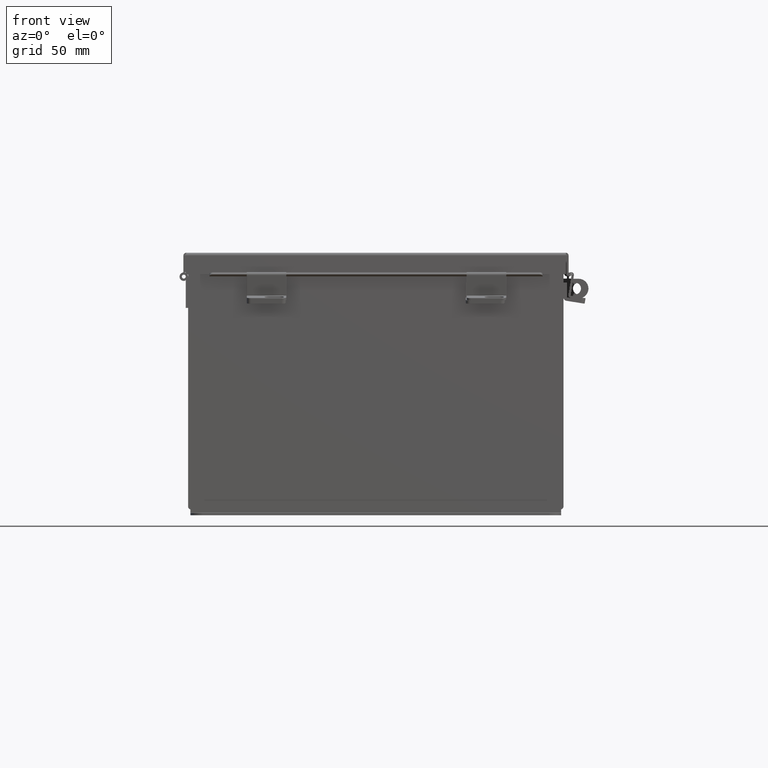
[diagram: clean part render]
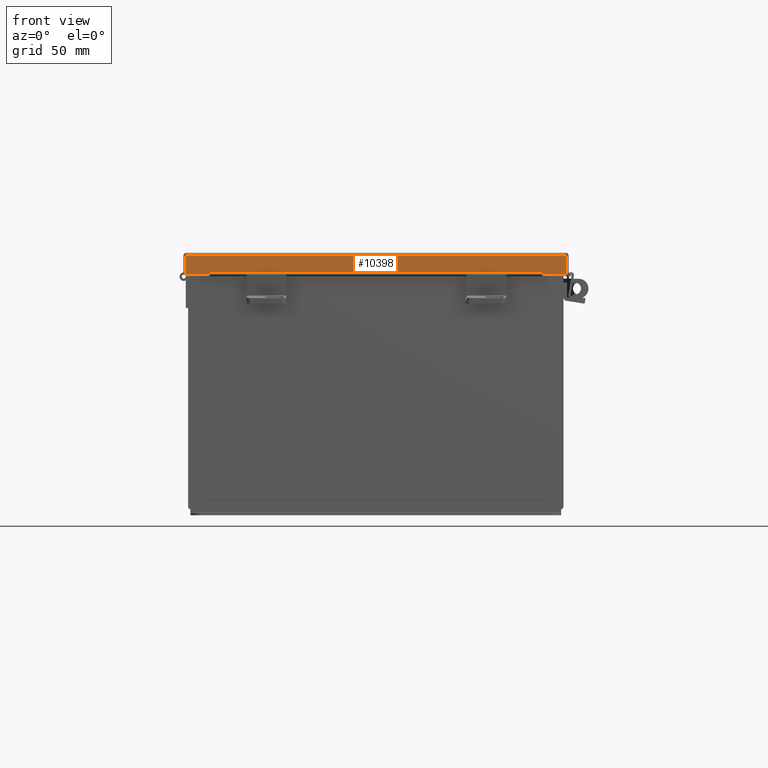
[diagram: same view with one face highlighted and labeled with its STEP entity id]
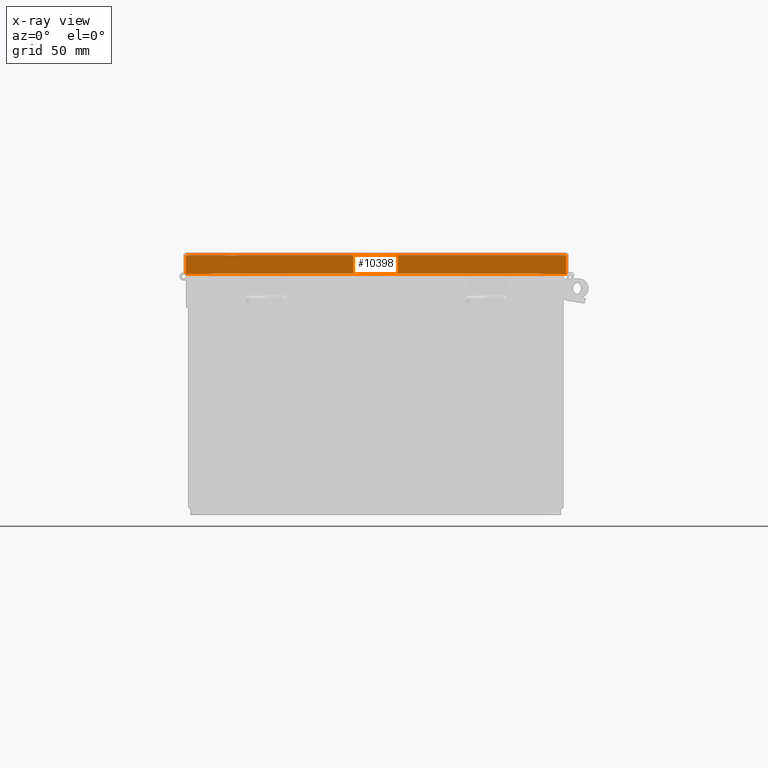
[diagram: x-ray of the same camera — body ghosted, the highlighted face saturated]
A machine part, front view. The second image highlights one B-rep face of the part: STEP entity #10398.
The next image is the same camera in x-ray: the body ghosted, the highlighted face saturated — about 0% of this face is hidden behind the body in this view.
In plain terms, the highlighted planar face has unit normal (0, 1, -0).
Its self-contained STEP definition (entity closure, byte-faithful):
#1458 = VECTOR ( 'NONE', #13759, 39.37007874015748100 ) ;
#1841 = AXIS2_PLACEMENT_3D ( 'NONE', #6951, #8509, #19443 ) ;
#1858 = CARTESIAN_POINT ( 'NONE',  ( -5.324478932188132100, -8.156250000000001800, 0.5967115427318793200 ) ) ;
#2674 = VERTEX_POINT ( 'NONE', #5388 ) ;
#2715 = ORIENTED_EDGE ( 'NONE', *, *, #3205, .F. ) ;
#2766 = ORIENTED_EDGE ( 'NONE', *, *, #11138, .F. ) ;
#2868 = DIRECTION ( 'NONE',  ( -1.000000000000000000, -2.980119896754336400E-033, 5.546899479520645900E-018 ) ) ;
#3205 = EDGE_CURVE ( 'NONE', #17601, #11369, #12376, .T. ) ;
#3629 = ORIENTED_EDGE ( 'NONE', *, *, #5014, .T. ) ;
#4115 = CARTESIAN_POINT ( 'NONE',  ( -6.156249999999998200, -8.156250000000000000, 0.01300000000000010700 ) ) ;
#5014 = EDGE_CURVE ( 'NONE', #17601, #2674, #8372, .T. ) ;
#5056 = DIRECTION ( 'NONE',  ( -1.000000000000000000, -2.980119896754336400E-033, 5.546899479520645900E-018 ) ) ;
#5237 = LINE ( 'NONE', #9011, #13535 ) ;
#5388 = CARTESIAN_POINT ( 'NONE',  ( -6.074478932188135600, -8.156250000000001800, 0.6122999999999994000 ) ) ;
#5599 = LINE ( 'NONE', #4115, #6093 ) ;
#6093 = VECTOR ( 'NONE', #18189, 39.37007874015748100 ) ;
#6332 = CARTESIAN_POINT ( 'NONE',  ( -5.324478932188133000, -8.156250000000003600, 0.6122999999999994000 ) ) ;
#6351 = CARTESIAN_POINT ( 'NONE',  ( 5.324478932188132100, -8.156250000000001800, 0.6122999999999994000 ) ) ;
#6617 = CARTESIAN_POINT ( 'NONE',  ( 4.268512490100411300E-018, -8.156250000000001800, 0.6122999999999994000 ) ) ;
#6951 = CARTESIAN_POINT ( 'NONE',  ( 0.0000000000000000000, -8.156250000000000000, -2.950395833157404200E-014 ) ) ;
#7230 = VERTEX_POINT ( 'NONE', #17961 ) ;
#7609 = EDGE_CURVE ( 'NONE', #16374, #2674, #9512, .T. ) ;
#7882 = VECTOR ( 'NONE', #5056, 39.37007874015748100 ) ;
#8232 = PLANE ( 'NONE',  #1841 ) ;
#8372 = LINE ( 'NONE', #6617, #7882 ) ;
#8509 = DIRECTION ( 'NONE',  ( 2.905052650632662100E-032, 1.000000000000000000, 3.569293475308526100E-015 ) ) ;
#9011 = CARTESIAN_POINT ( 'NONE',  ( 6.074478932188135600, -8.156250000000000000, -2.950395833157404200E-014 ) ) ;
#9224 = DIRECTION ( 'NONE',  ( -0.0000000000000000000, -3.569293475308526100E-015, 1.000000000000000000 ) ) ;
#9240 = LINE ( 'NONE', #19976, #17067 ) ;
#9512 = LINE ( 'NONE', #20134, #17794 ) ;
#9721 = LINE ( 'NONE', #19903, #1458 ) ;
#10006 = VECTOR ( 'NONE', #11006, 39.37007874015748100 ) ;
#10398 = ADVANCED_FACE ( 'NONE', ( #12674 ), #8232, .F. ) ;
#10630 = EDGE_CURVE ( 'NONE', #11169, #17205, #9240, .T. ) ;
#10760 = CARTESIAN_POINT ( 'NONE',  ( 6.074478932188137400, -8.156250000000001800, 0.6122999999999994000 ) ) ;
#10786 = ORIENTED_EDGE ( 'NONE', *, *, #7609, .F. ) ;
#11006 = DIRECTION ( 'NONE',  ( 0.0000000000000000000, -1.401985044024143500E-013, 1.000000000000000000 ) ) ;
#11138 = EDGE_CURVE ( 'NONE', #11369, #18574, #9721, .T. ) ;
#11169 = VERTEX_POINT ( 'NONE', #10760 ) ;
#11369 = VERTEX_POINT ( 'NONE', #1858 ) ;
#12376 = LINE ( 'NONE', #6332, #16055 ) ;
#12674 = FACE_OUTER_BOUND ( 'NONE', #18575, .T. ) ;
#13351 = EDGE_CURVE ( 'NONE', #7230, #11169, #5237, .T. ) ;
#13429 = CARTESIAN_POINT ( 'NONE',  ( 5.324478932188133000, -8.156250000000001800, 0.5967115427318793200 ) ) ;
#13535 = VECTOR ( 'NONE', #19931, 39.37007874015748100 ) ;
#13652 = LINE ( 'NONE', #18768, #10006 ) ;
#13759 = DIRECTION ( 'NONE',  ( 1.000000000000000000, 2.258600338820354400E-033, -0.0000000000000000000 ) ) ;
#13930 = ORIENTED_EDGE ( 'NONE', *, *, #19908, .F. ) ;
#16055 = VECTOR ( 'NONE', #17477, 39.37007874015748100 ) ;
#16374 = VERTEX_POINT ( 'NONE', #19918 ) ;
#17067 = VECTOR ( 'NONE', #2868, 39.37007874015748100 ) ;
#17205 = VERTEX_POINT ( 'NONE', #6351 ) ;
#17477 = DIRECTION ( 'NONE',  ( 7.009925220120870000E-014, 2.102977566036261100E-013, -1.000000000000000000 ) ) ;
#17598 = ORIENTED_EDGE ( 'NONE', *, *, #10630, .T. ) ;
#17601 = VERTEX_POINT ( 'NONE', #18790 ) ;
#17794 = VECTOR ( 'NONE', #9224, 39.37007874015748100 ) ;
#17961 = CARTESIAN_POINT ( 'NONE',  ( 6.074478932188137400, -8.156250000000000000, 0.01300000000000010700 ) ) ;
#18102 = ORIENTED_EDGE ( 'NONE', *, *, #20138, .F. ) ;
#18189 = DIRECTION ( 'NONE',  ( -1.000000000000000000, 2.239330294933626500E-032, -0.0000000000000000000 ) ) ;
#18574 = VERTEX_POINT ( 'NONE', #13429 ) ;
#18575 = EDGE_LOOP ( 'NONE', ( #2715, #3629, #10786, #13930, #19819, #17598, #18102, #2766 ) ) ;
#18768 = CARTESIAN_POINT ( 'NONE',  ( 5.324478932188133000, -8.156250000000000000, 0.5967115427318793200 ) ) ;
#18790 = CARTESIAN_POINT ( 'NONE',  ( -5.324478932188133000, -8.156250000000001800, 0.6122999999999994000 ) ) ;
#19443 = DIRECTION ( 'NONE',  ( 0.0000000000000000000, -3.569293475308526100E-015, 1.000000000000000000 ) ) ;
#19819 = ORIENTED_EDGE ( 'NONE', *, *, #13351, .T. ) ;
#19903 = CARTESIAN_POINT ( 'NONE',  ( -5.324478932188133000, -8.156250000000000000, 0.5967115427318793200 ) ) ;
#19908 = EDGE_CURVE ( 'NONE', #7230, #16374, #5599, .T. ) ;
#19918 = CARTESIAN_POINT ( 'NONE',  ( -6.074478932188137400, -8.156250000000000000, 0.01300000000000010700 ) ) ;
#19931 = DIRECTION ( 'NONE',  ( 0.0000000000000000000, -3.569293475308526100E-015, 1.000000000000000000 ) ) ;
#19976 = CARTESIAN_POINT ( 'NONE',  ( 4.268512490100411300E-018, -8.156250000000001800, 0.6122999999999994000 ) ) ;
#20134 = CARTESIAN_POINT ( 'NONE',  ( -6.074478932188135600, -8.156250000000000000, 0.0000000000000000000 ) ) ;
#20138 = EDGE_CURVE ( 'NONE', #18574, #17205, #13652, .T. ) ;